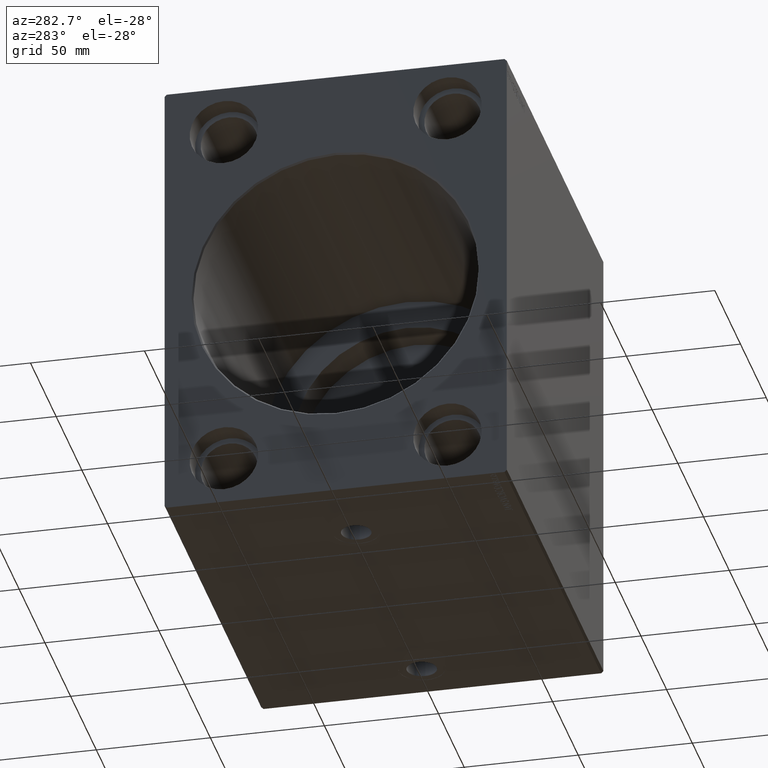
[diagram: clean part render]
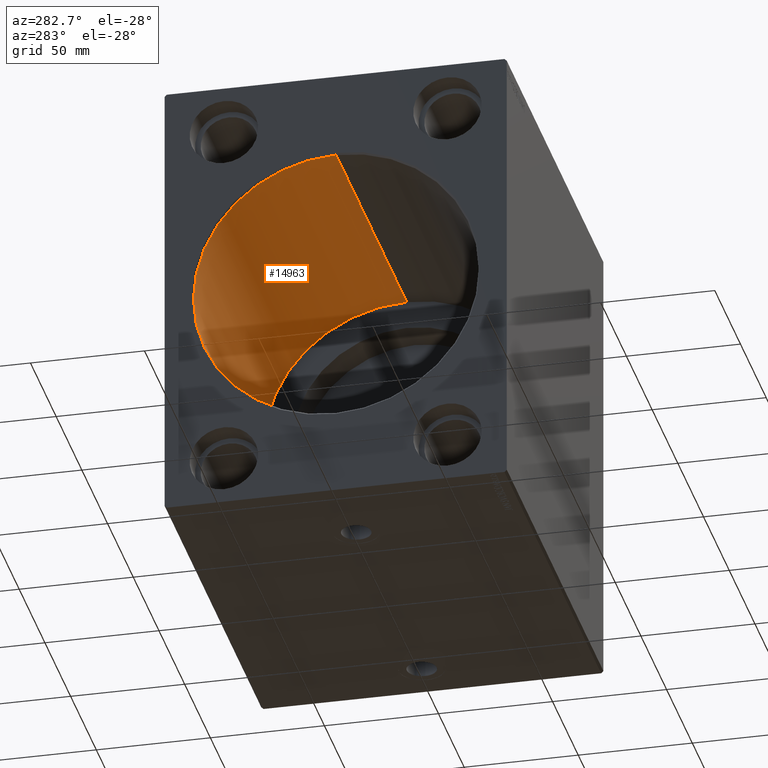
[diagram: same view with one face highlighted and labeled with its STEP entity id]
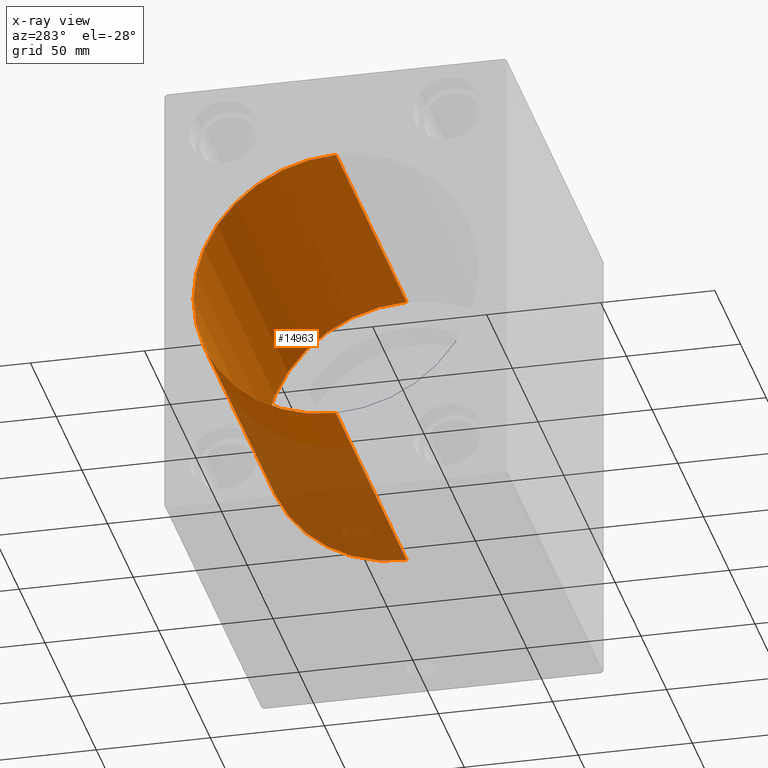
[diagram: x-ray of the same camera — body ghosted, the highlighted face saturated]
A machine part, auxiliary view. The second image highlights one B-rep face of the part: STEP entity #14963.
The next image is the same camera in x-ray: the body ghosted, the highlighted face saturated — about 25% of this face is hidden behind the body in this view.
In plain terms, the highlighted cylindrical surface (partial cylindrical patch) has radius 62.5 mm, axis along (-1, -0, -0).
Its self-contained STEP definition (entity closure, byte-faithful):
#1054 = VERTEX_POINT ( 'NONE', #26524 ) ;
#2187 = CARTESIAN_POINT ( 'NONE',  ( 0.7000000000000061728, 7.654042494670957804E-15, -62.50000000000000000 ) ) ;
#2579 = DIRECTION ( 'NONE',  ( 0.000000000000000000, 0.000000000000000000, -1.000000000000000000 ) ) ;
#2665 = DIRECTION ( 'NONE',  ( -1.000000000000000000, -0.000000000000000000, -0.000000000000000000 ) ) ;
#3891 = AXIS2_PLACEMENT_3D ( 'NONE', #35306, #28673, #24623 ) ;
#5787 = DIRECTION ( 'NONE',  ( -1.000000000000000000, 0.000000000000000000, 0.000000000000000000 ) ) ;
#6164 = VERTEX_POINT ( 'NONE', #39676 ) ;
#7681 = VERTEX_POINT ( 'NONE', #35052 ) ;
#8583 = CYLINDRICAL_SURFACE ( 'NONE', #3891, 62.50000000000000000 ) ;
#14507 = EDGE_CURVE ( 'NONE', #1054, #6164, #33966, .T. ) ;
#14662 = EDGE_CURVE ( 'NONE', #6164, #29562, #37526, .T. ) ;
#14963 = ADVANCED_FACE ( 'NONE', ( #31685 ), #8583, .F. ) ;
#16146 = DIRECTION ( 'NONE',  ( 0.000000000000000000, 0.000000000000000000, 1.000000000000000000 ) ) ;
#18567 = CIRCLE ( 'NONE', #30881, 62.50000000000000000 ) ;
#18915 = LINE ( 'NONE', #38800, #34870 ) ;
#21655 = AXIS2_PLACEMENT_3D ( 'NONE', #34790, #35625, #16146 ) ;
#24161 = EDGE_CURVE ( 'NONE', #1054, #7681, #18915, .T. ) ;
#24623 = DIRECTION ( 'NONE',  ( 0.000000000000000000, 0.000000000000000000, 1.000000000000000000 ) ) ;
#26524 = CARTESIAN_POINT ( 'NONE',  ( 138.0000000000000000, 0.000000000000000000, 62.50000000000000000 ) ) ;
#27106 = VECTOR ( 'NONE', #27238, 1000.000000000000000 ) ;
#27234 = ORIENTED_EDGE ( 'NONE', *, *, #14507, .F. ) ;
#27238 = DIRECTION ( 'NONE',  ( -1.000000000000000000, -0.000000000000000000, -0.000000000000000000 ) ) ;
#27263 = ORIENTED_EDGE ( 'NONE', *, *, #14662, .F. ) ;
#27395 = EDGE_LOOP ( 'NONE', ( #27263, #27234, #38732, #38152 ) ) ;
#28673 = DIRECTION ( 'NONE',  ( -1.000000000000000000, -0.000000000000000000, -0.000000000000000000 ) ) ;
#29562 = VERTEX_POINT ( 'NONE', #2187 ) ;
#30881 = AXIS2_PLACEMENT_3D ( 'NONE', #32297, #5787, #2579 ) ;
#31685 = FACE_OUTER_BOUND ( 'NONE', #27395, .T. ) ;
#32297 = CARTESIAN_POINT ( 'NONE',  ( 0.7000000000000061728, 0.000000000000000000, 0.000000000000000000 ) ) ;
#33890 = CARTESIAN_POINT ( 'NONE',  ( 138.0000000000000000, 7.654042494670957804E-15, -62.50000000000000000 ) ) ;
#33966 = CIRCLE ( 'NONE', #21655, 62.50000000000000000 ) ;
#34790 = CARTESIAN_POINT ( 'NONE',  ( 138.0000000000000000, 0.000000000000000000, 0.000000000000000000 ) ) ;
#34870 = VECTOR ( 'NONE', #2665, 1000.000000000000000 ) ;
#35052 = CARTESIAN_POINT ( 'NONE',  ( 0.7000000000000061728, 0.000000000000000000, 62.50000000000000000 ) ) ;
#35306 = CARTESIAN_POINT ( 'NONE',  ( 138.0000000000000000, 0.000000000000000000, 0.000000000000000000 ) ) ;
#35625 = DIRECTION ( 'NONE',  ( -1.000000000000000000, 0.000000000000000000, 0.000000000000000000 ) ) ;
#37526 = LINE ( 'NONE', #33890, #27106 ) ;
#38091 = EDGE_CURVE ( 'NONE', #7681, #29562, #18567, .T. ) ;
#38152 = ORIENTED_EDGE ( 'NONE', *, *, #38091, .T. ) ;
#38732 = ORIENTED_EDGE ( 'NONE', *, *, #24161, .T. ) ;
#38800 = CARTESIAN_POINT ( 'NONE',  ( 138.0000000000000000, 0.000000000000000000, 62.50000000000000000 ) ) ;
#39676 = CARTESIAN_POINT ( 'NONE',  ( 138.0000000000000000, 7.654042494670957804E-15, -62.50000000000000000 ) ) ;